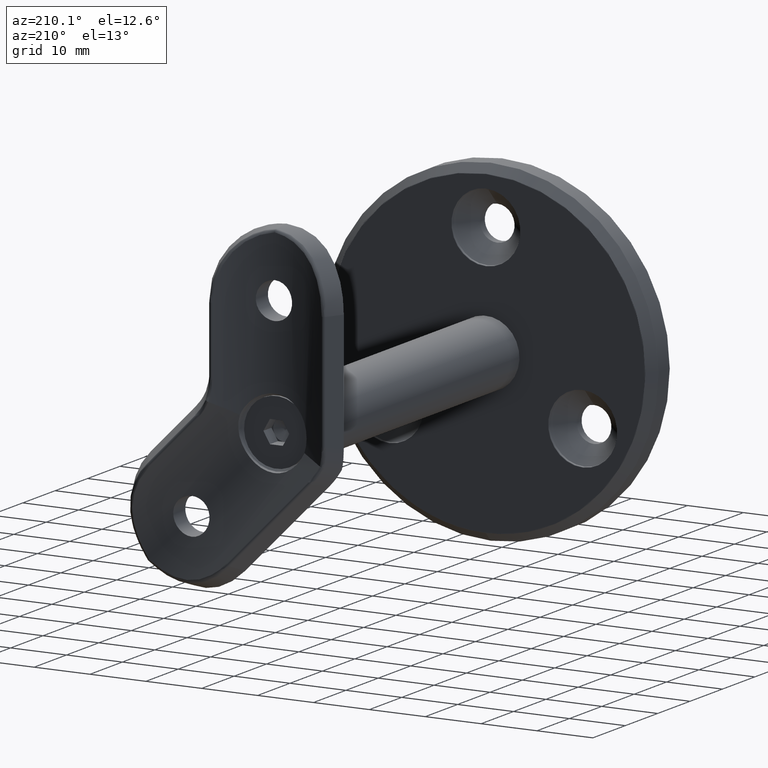
[diagram: clean part render]
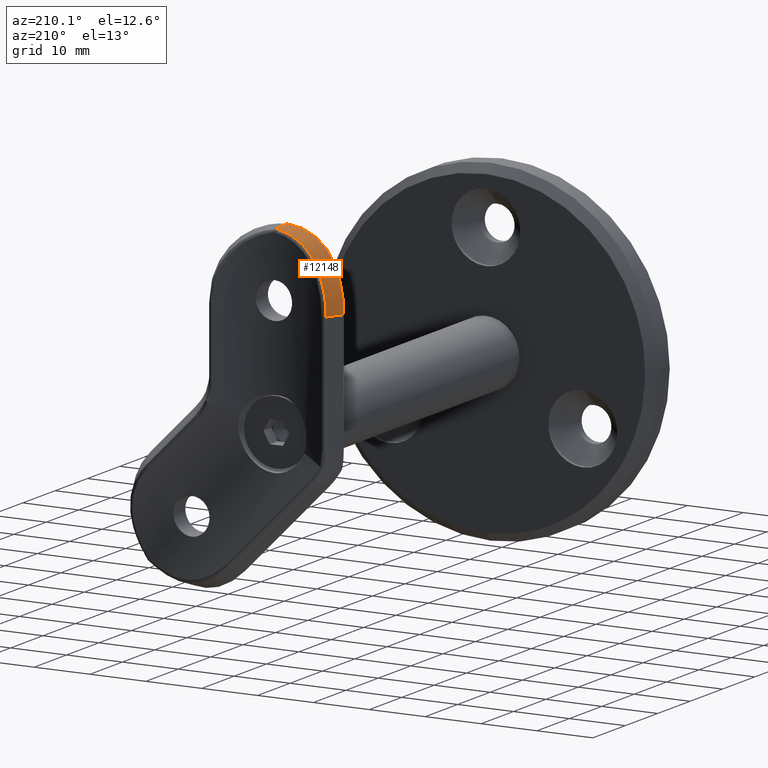
[diagram: same view with one face highlighted and labeled with its STEP entity id]
A machine part, auxiliary view. The second image highlights one B-rep face of the part: STEP entity #12148.
In plain terms, the highlighted cylindrical surface (partial cylindrical patch) has radius 12.5 mm, axis along (-0.4819, -0.8762, 0).
Its self-contained STEP definition (entity closure, byte-faithful):
#239 = EDGE_LOOP ( 'NONE', ( #9683, #1801, #12449, #822 ) ) ;
#822 = ORIENTED_EDGE ( 'NONE', *, *, #9280, .F. ) ;
#1010 = CARTESIAN_POINT ( 'NONE',  ( -11.63127593423871176, 2.883240075711221539, -9.264296820675539834 ) ) ;
#1527 = CARTESIAN_POINT ( 'NONE',  ( -12.00000000000000000, 3.082346597307952685, -12.49999999999999645 ) ) ;
#1667 = CARTESIAN_POINT ( 'NONE',  ( -9.860116048434028002, 5.591199235090759778, -8.457019761468529850 ) ) ;
#1801 = ORIENTED_EDGE ( 'NONE', *, *, #14476, .T. ) ;
#2022 = B_SPLINE_CURVE_WITH_KNOTS ( 'NONE', 3,
 ( #6488, #5180, #11774, #13287, #6538, #15941, #9195, #7892, #17095, #9252, #10591, #15880, #13058, #4942, #17217, #14432, #13113, #6306, #15699, #7656, #3755, #1010, #2349, #3691, #6366, #7719 ),
 .UNSPECIFIED., .F., .F.,
 ( 4, 2, 2, 2, 2, 2, 2, 2, 2, 2, 2, 2, 4 ),
 ( 0.0005688773810512037961, 0.003010928116034047343, 0.004231953483525469767, 0.005452978851016893058, 0.007895029585999739641, 0.009116054953491162932, 0.01033708032098258796, 0.01155810568847401645, 0.01277913105596544495, 0.01522118179094829847, 0.01644220715843973044, 0.01766323252593116067, 0.02010528326091401766 ),
 .UNSPECIFIED. ) ;
#2150 = CARTESIAN_POINT ( 'NONE',  ( -2.976727179693454342E-16, 3.239857663348333361, -0.1711426282776096208 ) ) ;
#2320 = CARTESIAN_POINT ( 'NONE',  ( 1.463318081287534743E-14, 0.000000000000000000, -0.01000400320320254943 ) ) ;
#2349 = CARTESIAN_POINT ( 'NONE',  ( -11.71892018293221938, 2.929946608142864672, -9.661418181616120648 ) ) ;
#2560 = CARTESIAN_POINT ( 'NONE',  ( -4.882074952605985452, 3.829536654084757075, -1.892580845202833872 ) ) ;
#2674 = CARTESIAN_POINT ( 'NONE',  ( -4.563158857446533823, 3.758067035653758214, -1.703175887287292412 ) ) ;
#2740 = CARTESIAN_POINT ( 'NONE',  ( -5.497781219102639838, 3.980476590670391168, -2.300364988293465807 ) ) ;
#2899 = CARTESIAN_POINT ( 'NONE',  ( -9.206930749884982390, 5.282982228987850526, -6.729421008887604749 ) ) ;
#3110 = VECTOR ( 'NONE', #12278, 1000.000000000000227 ) ;
#3226 = VERTEX_POINT ( 'NONE', #5668 ) ;
#3235 = CARTESIAN_POINT ( 'NONE',  ( 10.95263725034740965, 18.87590361445782960, -12.50000000000000000 ) ) ;
#3691 = CARTESIAN_POINT ( 'NONE',  ( -11.92926174041580012, 3.043008909993824229, -10.86203283303862932 ) ) ;
#3755 = CARTESIAN_POINT ( 'NONE',  ( -11.41929183893146593, 2.772549371437245558, -8.476390597548276062 ) ) ;
#3892 = CARTESIAN_POINT ( 'NONE',  ( -7.854425153734547749, 4.727958833548796314, -4.558923709038255723 ) ) ;
#4349 = CARTESIAN_POINT ( 'NONE',  ( -10.39497668125863861, 5.859623051412960137, -11.00090436258937032 ) ) ;
#4942 = CARTESIAN_POINT ( 'NONE',  ( -8.936431653063731773, 1.657067174833706469, -3.951359026442096578 ) ) ;
#5180 = CARTESIAN_POINT ( 'NONE',  ( -0.8191954138921666573, 1.482731174168652349E-15, -0.03873852067721934161 ) ) ;
#5209 = CARTESIAN_POINT ( 'NONE',  ( -8.488089677946582867, 4.976966832350727010, -5.460162855123491532 ) ) ;
#5668 = CARTESIAN_POINT ( 'NONE',  ( 1.463318081287534743E-14, 0.000000000000000000, -0.01000400320320254943 ) ) ;
#6306 = CARTESIAN_POINT ( 'NONE',  ( -10.52934465081288273, 2.331179716261313928, -6.238012928519367506 ) ) ;
#6366 = CARTESIAN_POINT ( 'NONE',  ( -12.00000000000000355, 3.082346597307953573, -11.67468659155521493 ) ) ;
#6488 = CARTESIAN_POINT ( 'NONE',  ( 1.463318081287534743E-14, 0.000000000000000000, -0.01000400320320254943 ) ) ;
#6538 = CARTESIAN_POINT ( 'NONE',  ( -3.217699393327955626, 0.2056162798510466627, -0.4702472948569176858 ) ) ;
#6564 = CARTESIAN_POINT ( 'NONE',  ( -2.907082843627702751, 3.453701825731732011, -0.9010068836756039978 ) ) ;
#6998 = VERTEX_POINT ( 'NONE', #9139 ) ;
#7017 = CARTESIAN_POINT ( 'NONE',  ( -9.965055030799131686, 5.642708180042149024, -8.816686816943413163 ) ) ;
#7089 = CARTESIAN_POINT ( 'NONE',  ( -10.14332426399821507, 5.731391831041616314, -9.538211067633982410 ) ) ;
#7656 = CARTESIAN_POINT ( 'NONE',  ( -11.29553683307911527, 2.708889678496892550, -8.088398392996984043 ) ) ;
#7719 = CARTESIAN_POINT ( 'NONE',  ( -12.00000000000000000, 3.082346597307952685, -12.49999999999999645 ) ) ;
#7749 = CARTESIAN_POINT ( 'NONE',  ( 7.256195943876381625E-16, 1.086248427539291850, -0.03096050383881562146 ) ) ;
#7892 = CARTESIAN_POINT ( 'NONE',  ( -5.492278831658849114, 0.6015425689991616975, -1.298473879925210461 ) ) ;
#7925 = CARTESIAN_POINT ( 'NONE',  ( -7.154301987194837231, 4.473214841419888010, -3.715861597651771930 ) ) ;
#7989 = CARTESIAN_POINT ( 'NONE',  ( -1.842123219300762837, 3.336613239468481318, -0.5619270096983834950 ) ) ;
#8383 = CARTESIAN_POINT ( 'NONE',  ( -10.45505487545768375, 5.891269701761543409, -11.74469251232978451 ) ) ;
#9085 = EDGE_CURVE ( 'NONE', #6998, #12398, #14068, .T. ) ;
#9139 = CARTESIAN_POINT ( 'NONE',  ( -12.00000000000000000, 3.082346597307952685, -12.49999999999999645 ) ) ;
#9195 = CARTESIAN_POINT ( 'NONE',  ( -4.380453402601024671, 0.3854294742829925680, -0.8408256694917124463 ) ) ;
#9224 = CARTESIAN_POINT ( 'NONE',  ( -0.7441986431115168443, 3.259269567933756218, -0.2953270253444114091 ) ) ;
#9228 = CARTESIAN_POINT ( 'NONE',  ( -2.976727179693454342E-16, 3.239857663348333361, -0.1711426282776096208 ) ) ;
#9252 = CARTESIAN_POINT ( 'NONE',  ( -7.183437503909660293, 1.056214804828535581, -2.347391180518095588 ) ) ;
#9273 = CARTESIAN_POINT ( 'NONE',  ( -8.678638571001972224, 5.056225827733840106, -5.771363583635894301 ) ) ;
#9280 = EDGE_CURVE ( 'NONE', #3226, #6998, #2022, .T. ) ;
#9446 = CARTESIAN_POINT ( 'NONE',  ( -2.976727179693454342E-16, 3.239857663348333361, -0.1711426282776096208 ) ) ;
#9683 = ORIENTED_EDGE ( 'NONE', *, *, #11837, .T. ) ;
#10418 = CARTESIAN_POINT ( 'NONE',  ( -10.45505487545768375, 5.891269701761542521, -12.49999999999999645 ) ) ;
#10591 = CARTESIAN_POINT ( 'NONE',  ( -7.503349832690521914, 1.155296670455898900, -2.591542297622155377 ) ) ;
#11023 = CARTESIAN_POINT ( 'NONE',  ( -10.21727204700306224, 5.768863407296725754, -9.901799010679813051 ) ) ;
#11644 = B_SPLINE_CURVE_WITH_KNOTS ( 'NONE', 3,
 ( #9446, #17297, #9224, #12046, #7989, #6564, #17356, #2674, #2560, #2740, #11918, #13427, #7925, #3892, #13318, #5209, #9273, #2899, #13602, #1667, #7017, #7089, #11023, #4349, #8383, #14969 ),
 .UNSPECIFIED., .F., .F.,
 ( 4, 2, 2, 2, 2, 2, 2, 2, 2, 2, 2, 2, 4 ),
 ( 4.892431474996201474E-19, 0.001131280647928915081, 0.002262561295857829727, 0.004525122591715659455, 0.005656403239644575837, 0.006787683887573490484, 0.009050245183431322379, 0.01018152583136023616, 0.01131280647928915167, 0.01357536777514698270, 0.01470664842307590342, 0.01583792907100482067, 0.01810049036686265517 ),
 .UNSPECIFIED. ) ;
#11774 = CARTESIAN_POINT ( 'NONE',  ( -1.627440240215804801, 0.04036384305547544710, -0.1293946109472723927 ) ) ;
#11837 = EDGE_CURVE ( 'NONE', #3226, #13377, #17057, .T. ) ;
#11918 = CARTESIAN_POINT ( 'NONE',  ( -5.792564565627690065, 4.059373703102722608, -2.517203553847179975 ) ) ;
#12046 = CARTESIAN_POINT ( 'NONE',  ( -1.478431646411764167, 3.305031091946477595, -0.4630653752688009828 ) ) ;
#12148 = ADVANCED_FACE ( 'NONE', ( #12653 ), #12219, .T. ) ;
#12219 = CYLINDRICAL_SURFACE ( 'NONE', #15624, 12.50000000000000178 ) ;
#12278 = DIRECTION ( 'NONE',  ( 0.4819277108433731582, 0.8762109800277932958, -0.000000000000000000 ) ) ;
#12398 = VERTEX_POINT ( 'NONE', #10418 ) ;
#12449 = ORIENTED_EDGE ( 'NONE', *, *, #9085, .F. ) ;
#12642 = DIRECTION ( 'NONE',  ( -0.4819277108433732693, -0.8762109800277935179, 0.000000000000000000 ) ) ;
#12653 = FACE_OUTER_BOUND ( 'NONE', #239, .T. ) ;
#13058 = CARTESIAN_POINT ( 'NONE',  ( -8.393859089535695261, 1.455664509521898076, -3.378407731914971013 ) ) ;
#13113 = CARTESIAN_POINT ( 'NONE',  ( -9.903066155532057380, 2.052867408294323681, -5.215769243556994894 ) ) ;
#13287 = CARTESIAN_POINT ( 'NONE',  ( -2.821808837442766560, 0.1571745190102803169, -0.3715277274888963421 ) ) ;
#13318 = CARTESIAN_POINT ( 'NONE',  ( -8.076504356841711640, 4.813007432885989978, -4.854451584290245592 ) ) ;
#13377 = VERTEX_POINT ( 'NONE', #9228 ) ;
#13427 = CARTESIAN_POINT ( 'NONE',  ( -6.639440574633436398, 4.302519365372579507, -3.205960720309160905 ) ) ;
#13602 = CARTESIAN_POINT ( 'NONE',  ( -9.501696876397360825, 5.419476174832432491, -7.400537405405755109 ) ) ;
#13819 = DIRECTION ( 'NONE',  ( 0.8762109800277934069, -0.4819277108433733248, 0.000000000000000000 ) ) ;
#14068 = LINE ( 'NONE', #1527, #3110 ) ;
#14432 = CARTESIAN_POINT ( 'NONE',  ( -9.675473794426805441, 1.955212908482890866, -4.883580587056352229 ) ) ;
#14476 = EDGE_CURVE ( 'NONE', #13377, #12398, #11644, .T. ) ;
#14969 = CARTESIAN_POINT ( 'NONE',  ( -10.45505487545768375, 5.891269701761542521, -12.49999999999999645 ) ) ;
#15624 = AXIS2_PLACEMENT_3D ( 'NONE', #3235, #12642, #13819 ) ;
#15699 = CARTESIAN_POINT ( 'NONE',  ( -10.87547070842451546, 2.498387212870706531, -6.956388742250738666 ) ) ;
#15880 = CARTESIAN_POINT ( 'NONE',  ( -8.107505758264471396, 1.354734121282299197, -3.106394040554516067 ) ) ;
#15941 = CARTESIAN_POINT ( 'NONE',  ( -3.999738592611216337, 0.3201654217413983372, -0.7057479309260151767 ) ) ;
#17002 = CARTESIAN_POINT ( 'NONE',  ( 2.118018343974415646E-16, 2.167623377859027478, -0.08474412361189383180 ) ) ;
#17057 =( BOUNDED_CURVE ( )  B_SPLINE_CURVE ( 3, ( #2320, #7749, #17002, #2150 ),
 .UNSPECIFIED., .F., .F. ) 
 B_SPLINE_CURVE_WITH_KNOTS ( ( 4, 4 ),
 ( 1.610807001148885309, 1.736463265480191698 ),
 .UNSPECIFIED. ) 
 CURVE ( )  GEOMETRIC_REPRESENTATION_ITEM ( )  RATIONAL_B_SPLINE_CURVE ( ( 1.000000000000000000, 0.9986846413726615523, 0.9986846413726615523, 1.000000000000000000 ) ) 
 REPRESENTATION_ITEM ( '' )  );
#17095 = CARTESIAN_POINT ( 'NONE',  ( -6.193265640526153248, 0.7727347606469537888, -1.673053028873246140 ) ) ;
#17217 = CARTESIAN_POINT ( 'NONE',  ( -9.192650196263452145, 1.757544853865925516, -4.252295405747423374 ) ) ;
#17297 = CARTESIAN_POINT ( 'NONE',  ( -0.3737012974560290357, 3.245011956817368315, -0.2263059100558783843 ) ) ;
#17356 = CARTESIAN_POINT ( 'NONE',  ( -3.587677423436421709, 3.561780843767480942, -1.184541776713945227 ) ) ;